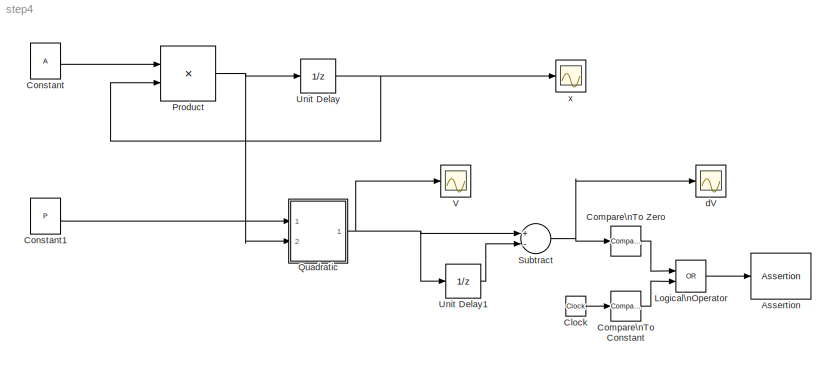
MODEL step4
KIND model
BLOCK [Assertion] Assertion
  Enabled = on
  SID = 28
BLOCK [Clock] Clock
  SID = 36
BLOCK [Reference] Compare\nTo Constant  REF=simulink/Logic and Bit\nOperations/Compare\nTo Constant
  OutDataTypeStr = boolean
  Ports = [1, 1]
  SID = 37
  SourceBlock = simulink/Logic and Bit\nOperations/Compare\nTo Constant
  SourceType = Compare To Constant
  ZeroCross = on
  const = 1
  relop = <=
BLOCK [Reference] Compare\nTo Zero  REF=simulink/Logic and Bit\nOperations/Compare\nTo Zero
  OutDataTypeStr = boolean
  Ports = [1, 1]
  SID = 34
  SourceBlock = simulink/Logic and Bit\nOperations/Compare\nTo Zero
  SourceType = Compare To Zero
  ZeroCross = on
  relop = <
BLOCK [Constant] Constant
  SID = 2
  Value = A
BLOCK [Constant] Constant1
  SID = 6
  Value = P
BLOCK [Logic] Logical\nOperator
  AllPortsSameDT = off
  IconShape = distinctive
  Operator = OR
  OutDataTypeStr = boolean
  Ports = [2, 1]
  SID = 38
BLOCK [Product] Product
  InputSameDT = off
  Multiplication = Matrix(*)
  OutDataTypeStr = Inherit: Inherit via internal rule
  Ports = [2, 1]
  SID = 3
  SaturateOnIntegerOverflow = off
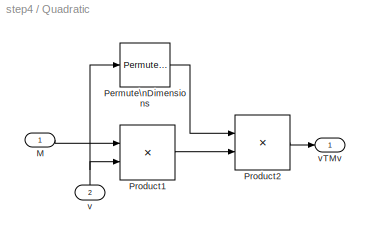
BLOCK [SubSystem] Quadratic
  FunctionWithSeparateData = off
  MaskHideContents = off
  MinAlgLoopOccurrences = off
  Opaque = off
  Ports = [2, 1]
  PropExecContextOutsideSubsystem = off
  RTWSystemCode = Auto
  RequestExecContextInheritance = off
  SID = 11
BLOCK [Inport] Quadratic/M
  IconDisplay = Port number
  SID = 12
BLOCK [PermuteDimensions] Quadratic/Permute\nDimensions
  SID = 8
BLOCK [Product] Quadratic/Product1
  InputSameDT = off
  Multiplication = Matrix(*)
  OutDataTypeStr = Inherit: Inherit via internal rule
  Ports = [2, 1]
  SID = 7
  SaturateOnIntegerOverflow = off
BLOCK [Product] Quadratic/Product2
  InputSameDT = off
  Multiplication = Matrix(*)
  OutDataTypeStr = Inherit: Inherit via internal rule
  Ports = [2, 1]
  SID = 9
  SaturateOnIntegerOverflow = off
BLOCK [Inport] Quadratic/v
  IconDisplay = Port number
  Port = 2
  SID = 14
BLOCK [Outport] Quadratic/vTMv
  IconDisplay = Port number
  SID = 13
BLOCK [Sum] Subtract
  InputSameDT = off
  Inputs = +-
  OutDataTypeStr = Inherit: Inherit via internal rule
  Ports = [2, 1]
  SID = 33
  SaturateOnIntegerOverflow = off
BLOCK [UnitDelay] Unit Delay
  InputProcessing = Elements as channels (sample based)
  SID = 1
  X0 = x0
BLOCK [UnitDelay] Unit Delay1
  InputProcessing = Elements as channels (sample based)
  SID = 32
BLOCK [Scope] V
  DataFormat = StructureWithTime
  Floating = off
  NumInputPorts = 1
  Ports = [1]
  SID = 30
  SampleTime = 0
  SaveName = ScopeData2
  ShowLegends = off
BLOCK [Scope] dV
  DataFormat = StructureWithTime
  Floating = off
  NumInputPorts = 1
  Ports = [1]
  SID = 10
  SampleTime = 0
  SaveName = ScopeData1
  ShowLegends = off
BLOCK [Scope] x
  DataFormat = StructureWithTime
  Floating = off
  NumInputPorts = 1
  Ports = [1]
  SID = 4
  SampleTime = 0
  ShowLegends = off
LINE Clock:1 -> Compare\nTo Constant:1
LINE Compare\nTo Constant:1 -> Logical\nOperator:2
LINE Compare\nTo Zero:1 -> Logical\nOperator:1
LINE Constant1:1 -> Quadratic:1
LINE Constant:1 -> Product:1
LINE Logical\nOperator:1 -> Assertion:1
NET Product:1 -> Quadratic:2, Unit Delay:1
LINE Quadratic/M:1 -> Quadratic/Product1:1
LINE Quadratic/Permute\nDimensions:1 -> Quadratic/Product2:1
LINE Quadratic/Product1:1 -> Quadratic/Product2:2
LINE Quadratic/Product2:1 -> Quadratic/vTMv:1
NET Quadratic/v:1 -> Quadratic/Permute\nDimensions:1, Quadratic/Product1:2
NET Quadratic:1 -> Subtract:1, Unit Delay1:1, V:1
NET Subtract:1 -> Compare\nTo Zero:1, dV:1
LINE Unit Delay1:1 -> Subtract:2
NET Unit Delay:1 -> Product:2, x:1
note: NET lines group one-source signal fan-out (src -> all destinations, sorted); 1:1 wires keep LINE
